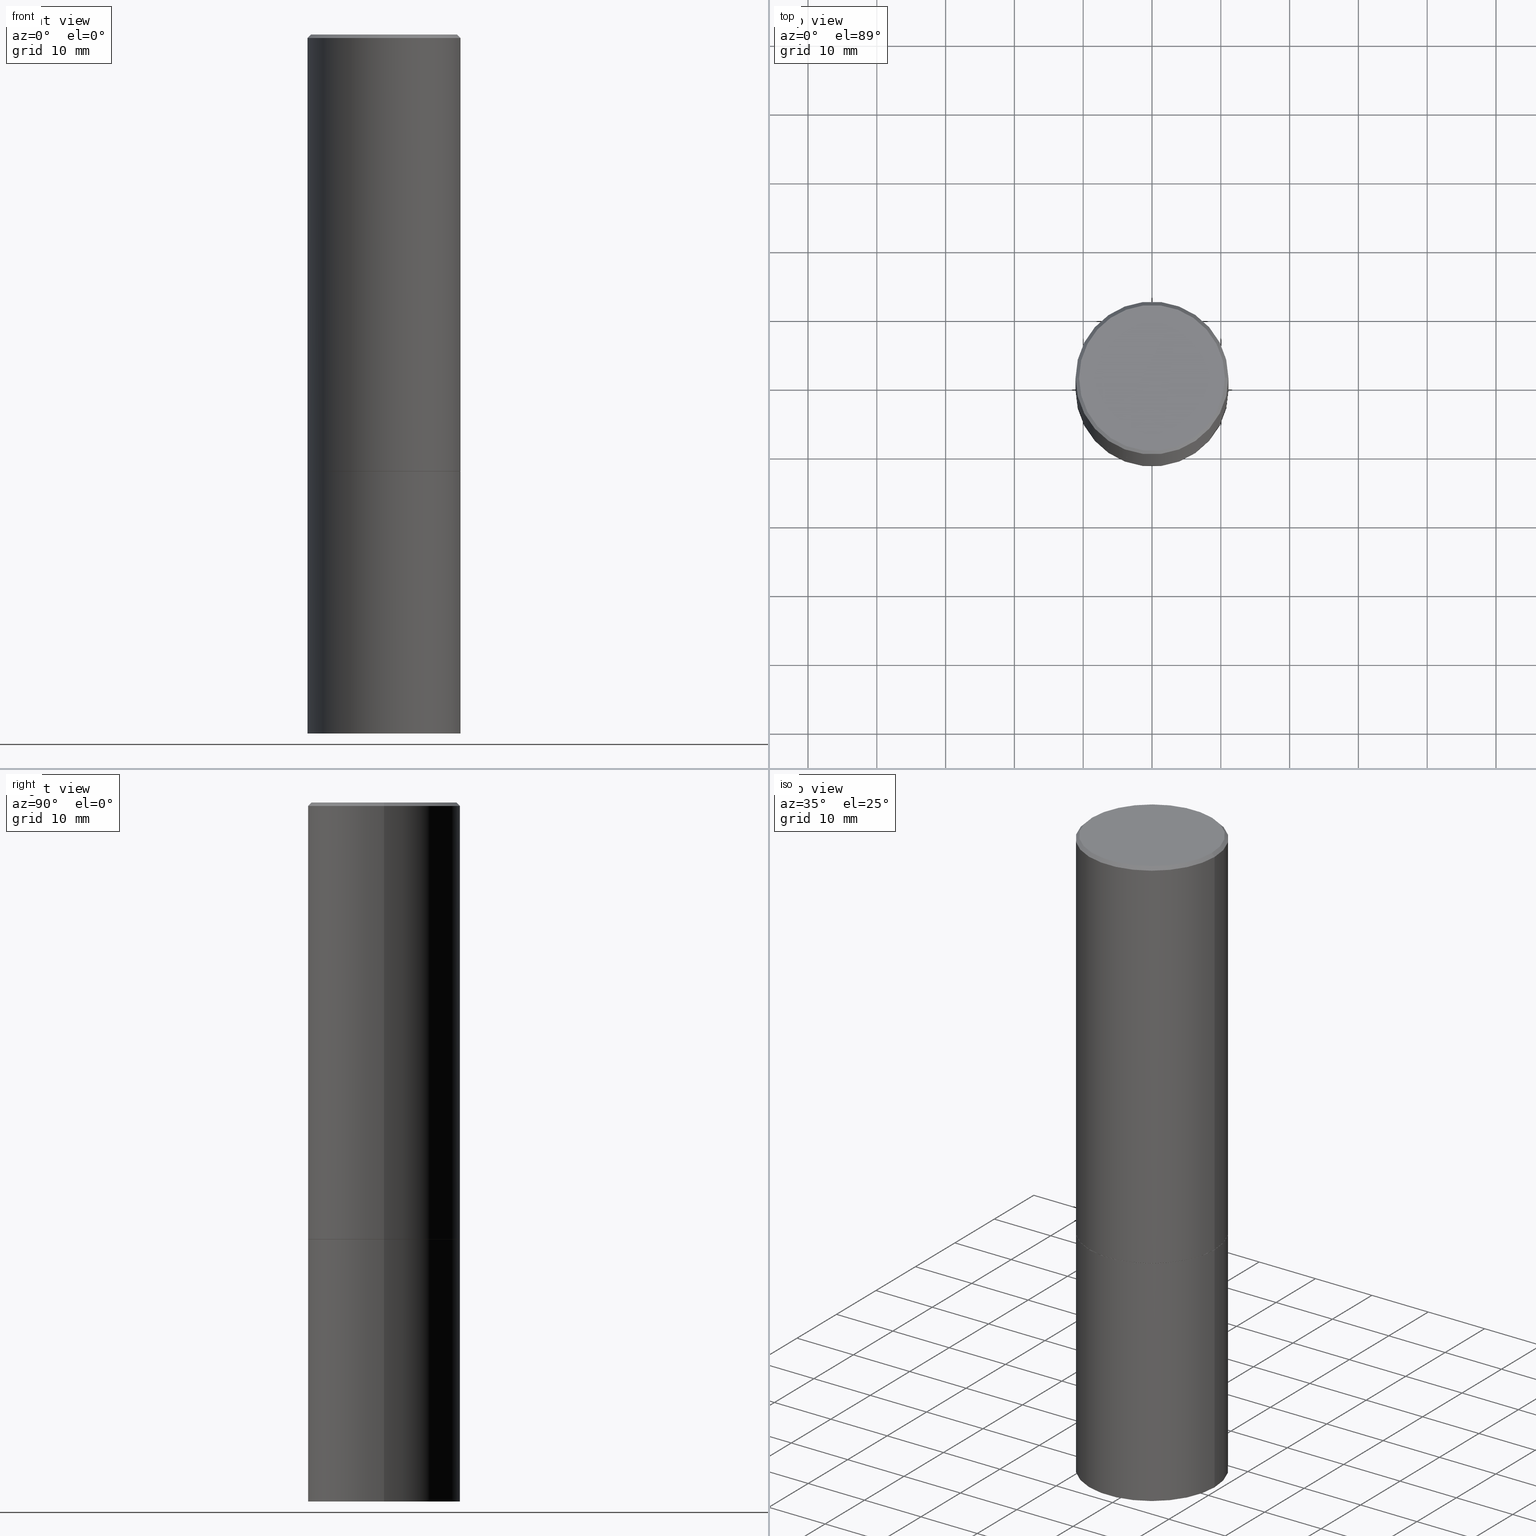
[diagram: canonical four-view strip — front | top / right | iso, engineering-drawing reading convention]
A machine part, canonical four-view strip (front | top / right | iso — engineering-drawing reading convention). The complete STEP part file that produces these views, byte-faithful:
ISO-10303-21;
HEADER;
FILE_DESCRIPTION (( 'STEP AP203' ),
    '1' );
FILE_NAME ('30573.STEP',
    '2024-02-27T12:46:13',
    ( '' ),
    ( '' ),
    'SwSTEP 2.0',
    'SolidWorks 2023',
    '' );
FILE_SCHEMA (( 'CONFIG_CONTROL_DESIGN' ));
ENDSEC;

DATA;
#1 = DIRECTION ( 'NONE',  ( 1.000000000000000000, -6.982962677686267499E-15, 0.000000000000000000 ) ) ;
#2 = PERSON_AND_ORGANIZATION ( #72, #252 ) ;
#3 = ORIENTED_EDGE ( 'NONE', *, *, #185, .T. ) ;
#4 = APPROVAL_STATUS ( 'not_yet_approved' ) ;
#5 = EDGE_LOOP ( 'NONE', ( #341, #3 ) ) ;
#6 = ORIENTED_EDGE ( 'NONE', *, *, #13, .F. ) ;
#7 = CC_DESIGN_DATE_AND_TIME_ASSIGNMENT ( #31, #173, ( #224 ) ) ;
#8 = PERSON_AND_ORGANIZATION_ROLE ( 'design_supplier' ) ;
#9 = EDGE_LOOP ( 'NONE', ( #35, #85, #245, #266 ) ) ;
#10 = AXIS2_PLACEMENT_3D ( 'NONE', #351, #123, #325 ) ;
#11 = DIRECTION ( 'NONE',  ( -2.445468806185136597E-29, 3.491481338843145583E-15, 1.000000000000000000 ) ) ;
#12 = DIRECTION ( 'NONE',  ( 1.000000000000000000, -6.982962677686266711E-15, 0.000000000000000000 ) ) ;
#13 = EDGE_CURVE ( 'NONE', #311, #138, #90, .T. ) ;
#14 = SHAPE_DEFINITION_REPRESENTATION ( #209, #345 ) ;
#15 = CARTESIAN_POINT ( 'NONE',  ( -0.4174999999999996492, 2.950301731322445161E-15, 4.268512490079900125E-18 ) ) ;
#16 = DIRECTION ( 'NONE',  ( -0.7071067811865467956, 2.468850131082249172E-15, -0.7071067811865482389 ) ) ;
#17 = LINE ( 'NONE', #241, #105 ) ;
#18 = EDGE_CURVE ( 'NONE', #146, #121, #326, .T. ) ;
#19 = LINE ( 'NONE', #22, #306 ) ;
#20 = AXIS2_PLACEMENT_3D ( 'NONE', #52, #281, #155 ) ;
#21 = PLANE ( 'NONE',  #112 ) ;
#22 = CARTESIAN_POINT ( 'NONE',  ( 0.4374999999999997224, -3.071297500801906385E-15, -0.02000000000000009756 ) ) ;
#23 = FACE_OUTER_BOUND ( 'NONE', #63, .T. ) ;
#24 = DIRECTION ( 'NONE',  ( 0.7071067811865467956, -7.319954787623254468E-15, -0.7071067811865482389 ) ) ;
#26 = EDGE_LOOP ( 'NONE', ( #219, #285, #291, #202 ) ) ;
#25 = ADVANCED_FACE ( 'NONE', ( #301 ), #147, .T. ) ;
#27 = DATE_AND_TIME ( #57, #211 ) ;
#28 = ORIENTED_EDGE ( 'NONE', *, *, #78, .F. ) ;
#29 = PERSON_AND_ORGANIZATION ( #72, #252 ) ;
#30 = EDGE_LOOP ( 'NONE', ( #256, #58, #230, #142 ) ) ;
#31 = DATE_AND_TIME ( #60, #327 ) ;
#32 = CC_DESIGN_PERSON_AND_ORGANIZATION_ASSIGNMENT ( #2, #8, ( #221 ) ) ;
#33 = VERTEX_POINT ( 'NONE', #349 ) ;
#34 = DATE_AND_TIME ( #199, #234 ) ;
#35 = ORIENTED_EDGE ( 'NONE', *, *, #293, .F. ) ;
#36 = CARTESIAN_POINT ( 'NONE',  ( 0.4364999999999999991, -1.177676655591792061E-14, -2.500000000000000000 ) ) ;
#37 = CIRCLE ( 'NONE', #244, 0.4364999999999999991 ) ;
#38 = CC_DESIGN_DATE_AND_TIME_ASSIGNMENT ( #109, #312, ( #62 ) ) ;
#39 = DIRECTION ( 'NONE',  ( -2.445468806185136597E-29, 3.491481338843145583E-15, 1.000000000000000000 ) ) ;
#40 = CARTESIAN_POINT ( 'NONE',  ( 0.4364999999999999991, -1.177676655591792061E-14, -2.500000000000000000 ) ) ;
#41 = CARTESIAN_POINT ( 'NONE',  ( 4.890937612370297681E-31, -6.982962677686324889E-17, -0.02000000000000009756 ) ) ;
#42 = AXIS2_PLACEMENT_3D ( 'NONE', #64, #137, #1 ) ;
#43 = AXIS2_PLACEMENT_3D ( 'NONE', #225, #145, #229 ) ;
#44 = DIRECTION ( 'NONE',  ( 1.000000000000000000, -6.982962677686267499E-15, 0.000000000000000000 ) ) ;
#45 = ADVANCED_FACE ( 'NONE', ( #324 ), #294, .T. ) ;
#46 = DIRECTION ( 'NONE',  ( -2.445468806185136597E-29, 3.491481338843145583E-15, 1.000000000000000000 ) ) ;
#47 = LINE ( 'NONE', #331, #332 ) ;
#48 = AXIS2_PLACEMENT_3D ( 'NONE', #279, #46, #159 ) ;
#49 = DIRECTION ( 'NONE',  ( 2.438088387897960049E-29, -3.491481338843145188E-15, -1.000000000000000000 ) ) ;
#50 = EDGE_CURVE ( 'NONE', #258, #287, #361, .T. ) ;
#51 = CARTESIAN_POINT ( 'NONE',  ( 6.113672015462842613E-29, -8.728703347107864943E-15, -2.500000000000000000 ) ) ;
#52 = CARTESIAN_POINT ( 'NONE',  ( 6.113672015462842613E-29, -8.728703347107864943E-15, -2.500000000000000000 ) ) ;
#53 = CIRCLE ( 'NONE', #269, 0.4374999999999997224 ) ;
#54 = DATE_AND_TIME ( #194, #300 ) ;
#55 = AXIS2_PLACEMENT_3D ( 'NONE', #253, #364, #108 ) ;
#56 = EDGE_LOOP ( 'NONE', ( #144, #110, #337, #236 ) ) ;
#57 = CALENDAR_DATE ( 2024, 27, 2 ) ;
#58 = ORIENTED_EDGE ( 'NONE', *, *, #13, .T. ) ;
#59 = ADVANCED_FACE ( 'NONE', ( #152 ), #277, .T. ) ;
#60 = CALENDAR_DATE ( 2024, 27, 2 ) ;
#61 = ORIENTED_EDGE ( 'NONE', *, *, #156, .T. ) ;
#62 = SECURITY_CLASSIFICATION ( '', '', #265 ) ;
#63 = EDGE_LOOP ( 'NONE', ( #178, #61, #174, #93 ) ) ;
#64 = CARTESIAN_POINT ( 'NONE',  ( 9.781875224740546387E-29, -1.396592535537258233E-14, -4.000000000000000000 ) ) ;
#65 = ADVANCED_FACE ( 'NONE', ( #215 ), #171, .T. ) ;
#66 = ADVANCED_FACE ( 'NONE', ( #95 ), #214, .T. ) ;
#67 = DIRECTION ( 'NONE',  ( -2.445468806185136597E-29, 3.491481338843145583E-15, 1.000000000000000000 ) ) ;
#68 = VECTOR ( 'NONE', #125, 39.37007874015748143 ) ;
#69 = APPROVAL_PERSON_ORGANIZATION ( #166, #303, #284 ) ;
#70 = CARTESIAN_POINT ( 'NONE',  ( 0.4375000000000000000, -3.055046171487741686E-15, 2.133327339410721769E-29 ) ) ;
#71 = DIRECTION ( 'NONE',  ( 1.000000000000000000, -6.982962677686267499E-15, 0.000000000000000000 ) ) ;
#72 = PERSON ( 'UNSPECIFIED', 'UNSPECIFIED', 'UNSPECIFIED', ('UNSPECIFIED'), ('UNSPECIFIED'), ('UNSPECIFIED') ) ;
#73 = CARTESIAN_POINT ( 'NONE',  ( 0.4375000000000000000, -1.702097152686032402E-14, -4.000000000000000000 ) ) ;
#74 = DIRECTION ( 'NONE',  ( -2.445468806185136597E-29, 3.491481338843145583E-15, 1.000000000000000000 ) ) ;
#75 = FACE_OUTER_BOUND ( 'NONE', #5, .T. ) ;
#76 = EDGE_CURVE ( 'NONE', #116, #258, #17, .T. ) ;
#77 = DIRECTION ( 'NONE',  ( 1.000000000000000000, -6.982962677686267499E-15, 0.000000000000000000 ) ) ;
#78 = EDGE_CURVE ( 'NONE', #138, #311, #204, .T. ) ;
#79 = CARTESIAN_POINT ( 'NONE',  ( 0.4374999999999997780, -3.055046171487740108E-15, 2.133327339410720928E-29 ) ) ;
#80 = CARTESIAN_POINT ( 'NONE',  ( 0.000000000000000000, 0.000000000000000000, 0.000000000000000000 ) ) ;
#81 = PRODUCT_RELATED_PRODUCT_CATEGORY ( 'detail', '', ( #270 ) ) ;
#82 = CARTESIAN_POINT ( 'NONE',  ( 0.4374999999999997224, -3.071297500801906385E-15, -0.02000000000000009756 ) ) ;
#83 = APPROVAL_DATE_TIME ( #34, #101 ) ;
#84 = CC_DESIGN_APPROVAL ( #254, ( #62 ) ) ;
#85 = ORIENTED_EDGE ( 'NONE', *, *, #130, .F. ) ;
#86 = EDGE_LOOP ( 'NONE', ( #339, #313, #320, #263 ) ) ;
#87 = EDGE_CURVE ( 'NONE', #138, #146, #242, .T. ) ;
#88 = EDGE_LOOP ( 'NONE', ( #170, #226 ) ) ;
#89 = PERSON_AND_ORGANIZATION_ROLE ( 'creator' ) ;
#90 = CIRCLE ( 'NONE', #42, 0.4375000000000000000 ) ;
#91 = VERTEX_POINT ( 'NONE', #126 ) ;
#92 = APPROVAL_PERSON_ORGANIZATION ( #262, #254, #120 ) ;
#93 = ORIENTED_EDGE ( 'NONE', *, *, #50, .F. ) ;
#94 = DIRECTION ( 'NONE',  ( 1.000000000000000000, -6.982962677686265133E-15, 0.000000000000000000 ) ) ;
#95 = FACE_OUTER_BOUND ( 'NONE', #30, .T. ) ;
#96 = CC_DESIGN_APPROVAL ( #303, ( #221 ) ) ;
#97 = DIRECTION ( 'NONE',  ( -2.445468806185136877E-29, 3.491481338843145188E-15, 1.000000000000000000 ) ) ;
#98 = LINE ( 'NONE', #36, #338 ) ;
#99 = DIRECTION ( 'NONE',  ( -2.445468806185136597E-29, 3.491481338843145583E-15, 1.000000000000000000 ) ) ;
#100 = AXIS2_PLACEMENT_3D ( 'NONE', #107, #304, #335 ) ;
#101 = APPROVAL ( #346, 'UNSPECIFIED' ) ;
#102 = DIRECTION ( 'NONE',  ( -2.445468806185136597E-29, 3.491481338843145583E-15, 1.000000000000000000 ) ) ;
#103 =( LENGTH_UNIT ( ) NAMED_UNIT ( * ) SI_UNIT ( $, .METRE. ) );
#104 = PLANE ( 'NONE',  #246 ) ;
#105 = VECTOR ( 'NONE', #16, 39.37007874015748143 ) ;
#106 = AXIS2_PLACEMENT_3D ( 'NONE', #80, #250, #136 ) ;
#107 = CARTESIAN_POINT ( 'NONE',  ( 6.113672015462842613E-29, -8.728703347107864943E-15, -2.500000000000000000 ) ) ;
#108 = DIRECTION ( 'NONE',  ( 1.000000000000000000, -6.982962677686266711E-15, 4.876176775795935232E-29 ) ) ;
#109 = DATE_AND_TIME ( #290, #184 ) ;
#110 = ORIENTED_EDGE ( 'NONE', *, *, #247, .T. ) ;
#111 = CIRCLE ( 'NONE', #318, 0.4375000000000000000 ) ;
#112 = AXIS2_PLACEMENT_3D ( 'NONE', #336, #132, #302 ) ;
#113 =( CONVERSION_BASED_UNIT ( 'INCH', #169 ) LENGTH_UNIT ( ) NAMED_UNIT ( #261 ) );
#114 = CARTESIAN_POINT ( 'NONE',  ( 6.113672015462842613E-29, -8.728703347107864943E-15, -2.500000000000000000 ) ) ;
#115 =( NAMED_UNIT ( * ) PLANE_ANGLE_UNIT ( ) SI_UNIT ( $, .RADIAN. ) );
#116 = VERTEX_POINT ( 'NONE', #15 ) ;
#117 = APPLICATION_PROTOCOL_DEFINITION ( 'international standard', 'config_control_design', 1994, #233 ) ;
#118 = VERTEX_POINT ( 'NONE', #40 ) ;
#119 = UNCERTAINTY_MEASURE_WITH_UNIT (LENGTH_MEASURE( 1.000000000000000082E-05 ), #113, 'distance_accuracy_value', 'NONE');
#120 = APPROVAL_ROLE ( '' ) ;
#121 = VERTEX_POINT ( 'NONE', #212 ) ;
#122 = EDGE_CURVE ( 'NONE', #311, #121, #181, .T. ) ;
#123 = DIRECTION ( 'NONE',  ( -2.445468806185136597E-29, 3.491481338843145583E-15, 1.000000000000000000 ) ) ;
#124 = CARTESIAN_POINT ( 'NONE',  ( 4.890937612370297681E-31, -6.982962677686324889E-17, -0.02000000000000009756 ) ) ;
#125 = DIRECTION ( 'NONE',  ( -2.445468806185136877E-29, 3.491481338843145188E-15, 1.000000000000000000 ) ) ;
#126 = CARTESIAN_POINT ( 'NONE',  ( 0.4374999999999998335, -1.178025803725676362E-14, -2.499000000000000110 ) ) ;
#127 = CARTESIAN_POINT ( 'NONE',  ( 9.781875224740546387E-29, -1.396592535537258233E-14, -4.000000000000000000 ) ) ;
#128 = EDGE_CURVE ( 'NONE', #287, #258, #53, .T. ) ;
#129 = CARTESIAN_POINT ( 'NONE',  ( 6.113672015462842613E-29, -8.728703347107864943E-15, -2.500000000000000000 ) ) ;
#130 = EDGE_CURVE ( 'NONE', #116, #343, #355, .T. ) ;
#131 = AXIS2_PLACEMENT_3D ( 'NONE', #127, #328, #71 ) ;
#132 = DIRECTION ( 'NONE',  ( 2.438088387897960049E-29, -3.491481338843145188E-15, -1.000000000000000000 ) ) ;
#133 = CARTESIAN_POINT ( 'NONE',  ( 3.055046171487839110E-15, 0.4374999999999860667, -4.000000000000001776 ) ) ;
#134 = CYLINDRICAL_SURFACE ( 'NONE', #106, 0.4374999999999997780 ) ;
#135 = CLOSED_SHELL ( 'NONE', ( #25, #59, #45, #65, #314, #168, #238, #354 ) ) ;
#136 = DIRECTION ( 'NONE',  ( 1.000000000000000000, -6.982962677686266711E-15, 4.876176775795935793E-29 ) ) ;
#137 = DIRECTION ( 'NONE',  ( -2.445468806185136597E-29, 3.491481338843145583E-15, 1.000000000000000000 ) ) ;
#138 = VERTEX_POINT ( 'NONE', #73 ) ;
#139 = EDGE_CURVE ( 'NONE', #118, #33, #37, .T. ) ;
#140 = CLOSED_SHELL ( 'NONE', ( #334, #248, #276, #66 ) ) ;
#141 = PERSON_AND_ORGANIZATION_ROLE ( 'classification_officer' ) ;
#142 = ORIENTED_EDGE ( 'NONE', *, *, #176, .F. ) ;
#143 = COORDINATED_UNIVERSAL_TIME_OFFSET ( 5, 0, .BEHIND. ) ;
#144 = ORIENTED_EDGE ( 'NONE', *, *, #139, .T. ) ;
#145 = DIRECTION ( 'NONE',  ( 0.000000000000000000, 0.000000000000000000, 1.000000000000000000 ) ) ;
#146 = VERTEX_POINT ( 'NONE', #186 ) ;
#147 = CONICAL_SURFACE ( 'NONE', #163, 0.4364999999999999991, 0.7853981633974824739 ) ;
#148 = CARTESIAN_POINT ( 'NONE',  ( 6.111226546656657010E-29, -8.725211865769021935E-15, -2.499000000000000110 ) ) ;
#149 = LINE ( 'NONE', #272, #68 ) ;
#150 = EDGE_CURVE ( 'NONE', #118, #91, #98, .T. ) ;
#151 = CARTESIAN_POINT ( 'NONE',  ( -0.4375000000000000000, 3.108624468950438313E-15, -2.152034101986521245E-29 ) ) ;
#152 = FACE_OUTER_BOUND ( 'NONE', #228, .T. ) ;
#153 = AXIS2_PLACEMENT_3D ( 'NONE', #362, #357, #77 ) ;
#154 = CARTESIAN_POINT ( 'NONE',  ( 6.113672015462842613E-29, -8.728703347107864943E-15, -2.500000000000000000 ) ) ;
#155 = DIRECTION ( 'NONE',  ( 1.000000000000000000, -6.982962677686267499E-15, 0.000000000000000000 ) ) ;
#156 = EDGE_CURVE ( 'NONE', #200, #91, #179, .T. ) ;
#157 = CC_DESIGN_PERSON_AND_ORGANIZATION_ASSIGNMENT ( #29, #141, ( #62 ) ) ;
#158 = DIRECTION ( 'NONE',  ( -1.000000000000000000, 6.982962677686265922E-15, -4.876176775795935793E-29 ) ) ;
#159 = DIRECTION ( 'NONE',  ( 1.000000000000000000, -6.982962677686266711E-15, 4.876119722228001824E-29 ) ) ;
#160 = EDGE_CURVE ( 'NONE', #200, #258, #149, .T. ) ;
#161 = CARTESIAN_POINT ( 'NONE',  ( -0.4375000000000000000, -8.238689882289784535E-15, -4.000000000000000000 ) ) ;
#162 = DIRECTION ( 'NONE',  ( -2.445468806185136597E-29, 3.491481338843145583E-15, 1.000000000000000000 ) ) ;
#163 = AXIS2_PLACEMENT_3D ( 'NONE', #154, #275, #44 ) ;
#164 = CIRCLE ( 'NONE', #205, 0.4364999999999999991 ) ;
#165 = PERSON_AND_ORGANIZATION_ROLE ( 'creator' ) ;
#166 = PERSON_AND_ORGANIZATION ( #72, #252 ) ;
#168 = ADVANCED_FACE ( 'NONE', ( #359 ), #322, .T. ) ;
#167 = ORIENTED_EDGE ( 'NONE', *, *, #187, .T. ) ;
#169 = LENGTH_MEASURE_WITH_UNIT ( LENGTH_MEASURE( 0.02539999999999999897 ), #103 );
#170 = ORIENTED_EDGE ( 'NONE', *, *, #139, .F. ) ;
#171 = CONICAL_SURFACE ( 'NONE', #259, 0.4374999999999997224, 0.7853981633974472798 ) ;
#172 = VECTOR ( 'NONE', #191, 39.37007874015748143 ) ;
#173 = DATE_TIME_ROLE ( 'creation_date' ) ;
#174 = ORIENTED_EDGE ( 'NONE', *, *, #298, .T. ) ;
#175 = PERSON_AND_ORGANIZATION_ROLE ( 'design_owner' ) ;
#176 = EDGE_CURVE ( 'NONE', #121, #146, #111, .T. ) ;
#177 = ORIENTED_EDGE ( 'NONE', *, *, #78, .T. ) ;
#178 = ORIENTED_EDGE ( 'NONE', *, *, #160, .F. ) ;
#179 = CIRCLE ( 'NONE', #227, 0.4374999999999998335 ) ;
#180 = CARTESIAN_POINT ( 'NONE',  ( 6.113672015462842613E-29, -8.728703347107864943E-15, -2.500000000000000000 ) ) ;
#181 = LINE ( 'NONE', #151, #217 ) ;
#182 = DIRECTION ( 'NONE',  ( -2.445468806185136597E-29, 3.491481338843145583E-15, 1.000000000000000000 ) ) ;
#183 = DIRECTION ( 'NONE',  ( -1.000000000000000000, 6.982962677686266711E-15, 0.000000000000000000 ) ) ;
#184 = LOCAL_TIME ( 7, 46, 13.00000000000000000, #366 ) ;
#185 = EDGE_CURVE ( 'NONE', #343, #116, #350, .T. ) ;
#186 = CARTESIAN_POINT ( 'NONE',  ( 0.4375000000000000000, -1.178374951859560505E-14, -2.500000000000000000 ) ) ;
#187 = EDGE_CURVE ( 'NONE', #91, #200, #260, .T. ) ;
#188 = FACE_OUTER_BOUND ( 'NONE', #88, .T. ) ;
#189 = PLANE ( 'NONE',  #100 ) ;
#190 = AXIS2_PLACEMENT_3D ( 'NONE', #124, #67, #12 ) ;
#191 = DIRECTION ( 'NONE',  ( -2.445468806185136877E-29, 3.491481338843145188E-15, 1.000000000000000000 ) ) ;
#192 = CARTESIAN_POINT ( 'NONE',  ( -0.4374999999999997224, 2.985216544710876416E-15, -0.02000000000000009756 ) ) ;
#193 = APPLICATION_CONTEXT ( 'configuration controlled 3d designs of mechanical parts and assemblies' ) ;
#194 = CALENDAR_DATE ( 2024, 27, 2 ) ;
#195 = AXIS2_PLACEMENT_3D ( 'NONE', #240, #99, #216 ) ;
#196 = AXIS2_PLACEMENT_3D ( 'NONE', #133, #49, #158 ) ;
#197 = APPROVAL_STATUS ( 'not_yet_approved' ) ;
#198 = ORIENTED_EDGE ( 'NONE', *, *, #87, .F. ) ;
#199 = CALENDAR_DATE ( 2024, 27, 2 ) ;
#200 = VERTEX_POINT ( 'NONE', #307 ) ;
#201 = APPLICATION_PROTOCOL_DEFINITION ( 'international standard', 'config_control_design', 1994, #193 ) ;
#202 = ORIENTED_EDGE ( 'NONE', *, *, #156, .F. ) ;
#203 = CC_DESIGN_PERSON_AND_ORGANIZATION_ASSIGNMENT ( #315, #175, ( #270 ) ) ;
#204 = CIRCLE ( 'NONE', #131, 0.4375000000000000000 ) ;
#205 = AXIS2_PLACEMENT_3D ( 'NONE', #129, #102, #218 ) ;
#206 = MECHANICAL_CONTEXT ( 'NONE', #233, 'mechanical' ) ;
#207 = EDGE_LOOP ( 'NONE', ( #28, #6 ) ) ;
#208 = ORIENTED_EDGE ( 'NONE', *, *, #122, .T. ) ;
#209 = PRODUCT_DEFINITION_SHAPE ( 'NONE', 'NONE',  #224 ) ;
#210 = DIRECTION ( 'NONE',  ( -2.445468806185136597E-29, 3.491481338843145583E-15, 1.000000000000000000 ) ) ;
#211 = LOCAL_TIME ( 7, 46, 13.00000000000000000, #309 ) ;
#212 = CARTESIAN_POINT ( 'NONE',  ( -0.4375000000000000000, -8.238689882289784535E-15, -2.500000000000000000 ) ) ;
#213 = MANIFOLD_SOLID_BREP ( 'Body-Move/Copy2[2]', #135 ) ;
#214 = CYLINDRICAL_SURFACE ( 'NONE', #310, 0.4375000000000000000 ) ;
#215 = FACE_OUTER_BOUND ( 'NONE', #9, .T. ) ;
#216 = DIRECTION ( 'NONE',  ( 1.000000000000000000, -6.982962677686266711E-15, 4.876119722228001824E-29 ) ) ;
#217 = VECTOR ( 'NONE', #271, 39.37007874015748143 ) ;
#218 = DIRECTION ( 'NONE',  ( 1.000000000000000000, -6.982962677686267499E-15, 0.000000000000000000 ) ) ;
#219 = ORIENTED_EDGE ( 'NONE', *, *, #247, .F. ) ;
#220 = FACE_OUTER_BOUND ( 'NONE', #268, .T. ) ;
#221 = PRODUCT_DEFINITION_FORMATION_WITH_SPECIFIED_SOURCE ( 'ANY', '', #270, .NOT_KNOWN. ) ;
#222 = FACE_OUTER_BOUND ( 'NONE', #289, .T. ) ;
#223 = CARTESIAN_POINT ( 'NONE',  ( 0.4174999999999996492, -2.967777707435759010E-15, 4.268512490120983292E-18 ) ) ;
#224 = PRODUCT_DEFINITION ( 'UNKNOWN', '', #221, #264 ) ;
#225 = CARTESIAN_POINT ( 'NONE',  ( 0.000000000000000000, 0.000000000000000000, 0.000000000000000000 ) ) ;
#226 = ORIENTED_EDGE ( 'NONE', *, *, #360, .F. ) ;
#227 = AXIS2_PLACEMENT_3D ( 'NONE', #148, #11, #321 ) ;
#228 = EDGE_LOOP ( 'NONE', ( #167, #232, #316, #292 ) ) ;
#229 = DIRECTION ( 'NONE',  ( 1.000000000000000000, 0.000000000000000000, 0.000000000000000000 ) ) ;
#230 = ORIENTED_EDGE ( 'NONE', *, *, #87, .T. ) ;
#231 = CC_DESIGN_PERSON_AND_ORGANIZATION_ASSIGNMENT ( #255, #89, ( #221 ) ) ;
#232 = ORIENTED_EDGE ( 'NONE', *, *, #160, .T. ) ;
#233 = APPLICATION_CONTEXT ( 'configuration controlled 3d designs of mechanical parts and assemblies' ) ;
#234 = LOCAL_TIME ( 7, 46, 13.00000000000000000, #288 ) ;
#235 = COORDINATED_UNIVERSAL_TIME_OFFSET ( 5, 0, .BEHIND. ) ;
#236 = ORIENTED_EDGE ( 'NONE', *, *, #150, .F. ) ;
#237 = DIRECTION ( 'NONE',  ( -1.000000000000000000, 6.982962677686266711E-15, 0.000000000000000000 ) ) ;
#238 = ADVANCED_FACE ( 'NONE', ( #188 ), #189, .F. ) ;
#239 = CARTESIAN_POINT ( 'NONE',  ( 4.890937612370297681E-31, -6.982962677686324889E-17, -0.02000000000000009756 ) ) ;
#240 = CARTESIAN_POINT ( 'NONE',  ( -1.043851414335219820E-46, 1.490343170380447200E-32, 4.268512490100411279E-18 ) ) ;
#241 = CARTESIAN_POINT ( 'NONE',  ( -0.4374999999999997224, 2.985216544710876416E-15, -0.02000000000000009756 ) ) ;
#242 = LINE ( 'NONE', #70, #251 ) ;
#243 = PLANE ( 'NONE',  #196 ) ;
#244 = AXIS2_PLACEMENT_3D ( 'NONE', #180, #74, #352 ) ;
#245 = ORIENTED_EDGE ( 'NONE', *, *, #76, .T. ) ;
#246 = AXIS2_PLACEMENT_3D ( 'NONE', #330, #278, #282 ) ;
#247 = EDGE_CURVE ( 'NONE', #33, #200, #47, .T. ) ;
#248 = ADVANCED_FACE ( 'NONE', ( #305 ), #243, .T. ) ;
#249 = DIRECTION ( 'NONE',  ( 1.000000000000000000, -6.982962677686265133E-15, 0.000000000000000000 ) ) ;
#250 = DIRECTION ( 'NONE',  ( -2.445468806185136597E-29, 3.491481338843145583E-15, 1.000000000000000000 ) ) ;
#251 = VECTOR ( 'NONE', #97, 39.37007874015748143 ) ;
#252 = ORGANIZATION ( 'UNSPECIFIED', 'UNSPECIFIED', '' ) ;
#253 = CARTESIAN_POINT ( 'NONE',  ( 0.000000000000000000, 0.000000000000000000, 0.000000000000000000 ) ) ;
#254 = APPROVAL ( #4, 'UNSPECIFIED' ) ;
#255 = PERSON_AND_ORGANIZATION ( #72, #252 ) ;
#256 = ORIENTED_EDGE ( 'NONE', *, *, #122, .F. ) ;
#257 = APPROVAL_DATE_TIME ( #27, #303 ) ;
#258 = VERTEX_POINT ( 'NONE', #192 ) ;
#259 = AXIS2_PLACEMENT_3D ( 'NONE', #239, #299, #183 ) ;
#260 = CIRCLE ( 'NONE', #153, 0.4374999999999998335 ) ;
#261 = DIMENSIONAL_EXPONENTS ( 1.000000000000000000, 0.000000000000000000, 0.000000000000000000, 0.000000000000000000, 0.000000000000000000, 0.000000000000000000, 0.000000000000000000 ) ;
#262 = PERSON_AND_ORGANIZATION ( #72, #252 ) ;
#263 = ORIENTED_EDGE ( 'NONE', *, *, #76, .F. ) ;
#264 = DESIGN_CONTEXT ( 'detailed design', #193, 'design' ) ;
#265 = SECURITY_CLASSIFICATION_LEVEL ( 'unclassified' ) ;
#266 = ORIENTED_EDGE ( 'NONE', *, *, #50, .T. ) ;
#267 =( NAMED_UNIT ( * ) SI_UNIT ( $, .STERADIAN. ) SOLID_ANGLE_UNIT ( ) );
#268 = EDGE_LOOP ( 'NONE', ( #347, #358 ) ) ;
#269 = AXIS2_PLACEMENT_3D ( 'NONE', #273, #182, #353 ) ;
#270 = PRODUCT ( '30573', '30573', '', ( #206 ) ) ;
#271 = DIRECTION ( 'NONE',  ( -2.445468806185136877E-29, 3.491481338843145188E-15, 1.000000000000000000 ) ) ;
#272 = CARTESIAN_POINT ( 'NONE',  ( -0.4374999999999997780, 3.108624468950436735E-15, -2.152034101986520123E-29 ) ) ;
#273 = CARTESIAN_POINT ( 'NONE',  ( 4.890937612370297681E-31, -6.982962677686324889E-17, -0.02000000000000009756 ) ) ;
#274 = AXIS2_PLACEMENT_3D ( 'NONE', #41, #323, #237 ) ;
#275 = DIRECTION ( 'NONE',  ( -2.445468806185136597E-29, 3.491481338843145583E-15, 1.000000000000000000 ) ) ;
#276 = ADVANCED_FACE ( 'NONE', ( #220 ), #104, .F. ) ;
#277 = CYLINDRICAL_SURFACE ( 'NONE', #10, 0.4374999999999997780 ) ;
#278 = DIRECTION ( 'NONE',  ( 2.438088387897960049E-29, -3.491481338843145188E-15, -1.000000000000000000 ) ) ;
#279 = CARTESIAN_POINT ( 'NONE',  ( -1.043851414335219820E-46, 1.490343170380447200E-32, 4.268512490100411279E-18 ) ) ;
#280 = DIRECTION ( 'NONE',  ( -0.7071067811865715536, 7.493145998870439357E-15, 0.7071067811865232589 ) ) ;
#281 = DIRECTION ( 'NONE',  ( -2.445468806185136597E-29, 3.491481338843145583E-15, 1.000000000000000000 ) ) ;
#282 = DIRECTION ( 'NONE',  ( -1.000000000000000000, 6.982962677686265922E-15, -4.876176775795935793E-29 ) ) ;
#283 = APPROVAL_DATE_TIME ( #54, #254 ) ;
#284 = APPROVAL_ROLE ( '' ) ;
#285 = ORIENTED_EDGE ( 'NONE', *, *, #360, .T. ) ;
#286 = APPROVAL_ROLE ( '' ) ;
#287 = VERTEX_POINT ( 'NONE', #82 ) ;
#288 = COORDINATED_UNIVERSAL_TIME_OFFSET ( 5, 0, .BEHIND. ) ;
#289 = EDGE_LOOP ( 'NONE', ( #177, #208, #319, #198 ) ) ;
#290 = CALENDAR_DATE ( 2024, 27, 2 ) ;
#291 = ORIENTED_EDGE ( 'NONE', *, *, #150, .T. ) ;
#292 = ORIENTED_EDGE ( 'NONE', *, *, #298, .F. ) ;
#293 = EDGE_CURVE ( 'NONE', #343, #287, #19, .T. ) ;
#294 = CONICAL_SURFACE ( 'NONE', #274, 0.4374999999999997224, 0.7853981633974472798 ) ;
#295 = CC_DESIGN_SECURITY_CLASSIFICATION ( #62, ( #221 ) ) ;
#296 = DIRECTION ( 'NONE',  ( 0.7071067811865715536, -2.468850131082509496E-15, 0.7071067811865232589 ) ) ;
#297 = DIRECTION ( 'NONE',  ( 1.000000000000000000, -6.982962677686266711E-15, 4.876176775795935232E-29 ) ) ;
#298 = EDGE_CURVE ( 'NONE', #91, #287, #329, .T. ) ;
#299 = DIRECTION ( 'NONE',  ( 2.445468806185136597E-29, -3.491481338843145583E-15, -1.000000000000000000 ) ) ;
#300 = LOCAL_TIME ( 7, 46, 13.00000000000000000, #235 ) ;
#301 = FACE_OUTER_BOUND ( 'NONE', #56, .T. ) ;
#302 = DIRECTION ( 'NONE',  ( -1.000000000000000000, 6.982962677686265922E-15, -4.876176775795935793E-29 ) ) ;
#303 = APPROVAL ( #197, 'UNSPECIFIED' ) ;
#304 = DIRECTION ( 'NONE',  ( -2.438088387897960049E-29, 3.491481338843145188E-15, 1.000000000000000000 ) ) ;
#305 = FACE_OUTER_BOUND ( 'NONE', #207, .T. ) ;
#306 = VECTOR ( 'NONE', #24, 39.37007874015748143 ) ;
#307 = CARTESIAN_POINT ( 'NONE',  ( -0.4374999999999998335, -1.288896277322503515E-15, -2.499000000000000110 ) ) ;
#308 = CYLINDRICAL_SURFACE ( 'NONE', #55, 0.4375000000000000000 ) ;
#309 = COORDINATED_UNIVERSAL_TIME_OFFSET ( 5, 0, .BEHIND. ) ;
#310 = AXIS2_PLACEMENT_3D ( 'NONE', #348, #210, #297 ) ;
#311 = VERTEX_POINT ( 'NONE', #161 ) ;
#312 = DATE_TIME_ROLE ( 'classification_date' ) ;
#314 = ADVANCED_FACE ( 'NONE', ( #23 ), #134, .T. ) ;
#313 = ORIENTED_EDGE ( 'NONE', *, *, #293, .T. ) ;
#315 = PERSON_AND_ORGANIZATION ( #72, #252 ) ;
#316 = ORIENTED_EDGE ( 'NONE', *, *, #128, .F. ) ;
#317 = AXIS2_PLACEMENT_3D ( 'NONE', #114, #39, #94 ) ;
#318 = AXIS2_PLACEMENT_3D ( 'NONE', #51, #162, #249 ) ;
#319 = ORIENTED_EDGE ( 'NONE', *, *, #18, .F. ) ;
#320 = ORIENTED_EDGE ( 'NONE', *, *, #128, .T. ) ;
#321 = DIRECTION ( 'NONE',  ( 1.000000000000000000, -6.982962677686267499E-15, 0.000000000000000000 ) ) ;
#322 = CONICAL_SURFACE ( 'NONE', #20, 0.4364999999999999991, 0.7853981633974824739 ) ;
#323 = DIRECTION ( 'NONE',  ( 2.445468806185136597E-29, -3.491481338843145583E-15, -1.000000000000000000 ) ) ;
#324 = FACE_OUTER_BOUND ( 'NONE', #86, .T. ) ;
#325 = DIRECTION ( 'NONE',  ( 1.000000000000000000, -6.982962677686266711E-15, 4.876176775795935793E-29 ) ) ;
#326 = CIRCLE ( 'NONE', #317, 0.4375000000000000000 ) ;
#327 = LOCAL_TIME ( 7, 46, 13.00000000000000000, #143 ) ;
#328 = DIRECTION ( 'NONE',  ( -2.445468806185136597E-29, 3.491481338843145583E-15, 1.000000000000000000 ) ) ;
#329 = LINE ( 'NONE', #79, #172 ) ;
#330 = CARTESIAN_POINT ( 'NONE',  ( 3.055046171487802034E-15, 0.4374999999999912292, -2.500000000000001776 ) ) ;
#331 = CARTESIAN_POINT ( 'NONE',  ( -0.4364999999999999991, -5.627184305515027638E-15, -2.500000000000000000 ) ) ;
#332 = VECTOR ( 'NONE', #280, 39.37007874015748854 ) ;
#333 = MANIFOLD_SOLID_BREP ( 'Body-Move/Copy2[1]', #140 ) ;
#334 = ADVANCED_FACE ( 'NONE', ( #222 ), #308, .T. ) ;
#335 = DIRECTION ( 'NONE',  ( 1.000000000000000000, -6.982962677686265922E-15, 4.876176775795935793E-29 ) ) ;
#336 = CARTESIAN_POINT ( 'NONE',  ( 2.915386917934013512E-15, 0.4174999999999996492, -1.455559202721961867E-15 ) ) ;
#337 = ORIENTED_EDGE ( 'NONE', *, *, #187, .F. ) ;
#338 = VECTOR ( 'NONE', #296, 39.37007874015748854 ) ;
#339 = ORIENTED_EDGE ( 'NONE', *, *, #185, .F. ) ;
#340 = PERSON_AND_ORGANIZATION ( #72, #252 ) ;
#341 = ORIENTED_EDGE ( 'NONE', *, *, #130, .T. ) ;
#342 = PERSON_AND_ORGANIZATION ( #72, #252 ) ;
#343 = VERTEX_POINT ( 'NONE', #223 ) ;
#344 = APPROVAL_PERSON_ORGANIZATION ( #342, #101, #286 ) ;
#345 = ADVANCED_BREP_SHAPE_REPRESENTATION ( '30573', ( #333, #213, #43 ), #356 ) ;
#346 = APPROVAL_STATUS ( 'not_yet_approved' ) ;
#347 = ORIENTED_EDGE ( 'NONE', *, *, #18, .T. ) ;
#348 = CARTESIAN_POINT ( 'NONE',  ( 0.000000000000000000, 0.000000000000000000, 0.000000000000000000 ) ) ;
#349 = CARTESIAN_POINT ( 'NONE',  ( -0.4364999999999999991, -5.621885851166806024E-15, -2.500000000000000000 ) ) ;
#350 = CIRCLE ( 'NONE', #48, 0.4174999999999996492 ) ;
#351 = CARTESIAN_POINT ( 'NONE',  ( 0.000000000000000000, 0.000000000000000000, 0.000000000000000000 ) ) ;
#352 = DIRECTION ( 'NONE',  ( 1.000000000000000000, -6.982962677686267499E-15, 0.000000000000000000 ) ) ;
#353 = DIRECTION ( 'NONE',  ( 1.000000000000000000, -6.982962677686266711E-15, 0.000000000000000000 ) ) ;
#354 = ADVANCED_FACE ( 'NONE', ( #75 ), #21, .F. ) ;
#355 = CIRCLE ( 'NONE', #195, 0.4174999999999996492 ) ;
#356 =( GEOMETRIC_REPRESENTATION_CONTEXT ( 3 ) GLOBAL_UNCERTAINTY_ASSIGNED_CONTEXT ( ( #119 ) ) GLOBAL_UNIT_ASSIGNED_CONTEXT ( ( #113, #115, #267 ) ) REPRESENTATION_CONTEXT ( 'NONE', 'WORKASPACE' ) );
#357 = DIRECTION ( 'NONE',  ( -2.445468806185136597E-29, 3.491481338843145583E-15, 1.000000000000000000 ) ) ;
#358 = ORIENTED_EDGE ( 'NONE', *, *, #176, .T. ) ;
#359 = FACE_OUTER_BOUND ( 'NONE', #26, .T. ) ;
#360 = EDGE_CURVE ( 'NONE', #33, #118, #164, .T. ) ;
#361 = CIRCLE ( 'NONE', #190, 0.4374999999999997224 ) ;
#362 = CARTESIAN_POINT ( 'NONE',  ( 6.111226546656657010E-29, -8.725211865769021935E-15, -2.499000000000000110 ) ) ;
#363 = CC_DESIGN_APPROVAL ( #101, ( #224 ) ) ;
#364 = DIRECTION ( 'NONE',  ( -2.445468806185136597E-29, 3.491481338843145583E-15, 1.000000000000000000 ) ) ;
#365 = CC_DESIGN_PERSON_AND_ORGANIZATION_ASSIGNMENT ( #340, #165, ( #224 ) ) ;
#366 = COORDINATED_UNIVERSAL_TIME_OFFSET ( 5, 0, .BEHIND. ) ;
ENDSEC;
END-ISO-10303-21;
